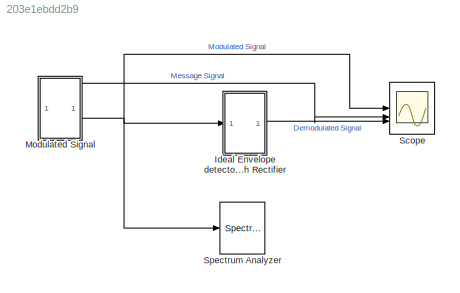
MODEL slx_203e1ebdd2b9
KIND model
CONFIG AbsTol = auto
CONFIG EnableMultiTasking = off
CONFIG FixedStep = auto
CONFIG MaxStep = auto
CONFIG MinStep = auto
CONFIG RelTol = 1e-3
CONFIG SampleTimeConstraint = Unconstrained
CONFIG SolverName = VariableStepAuto
CONFIG StartTime = 0.0
CONFIG StopTime = 0.02
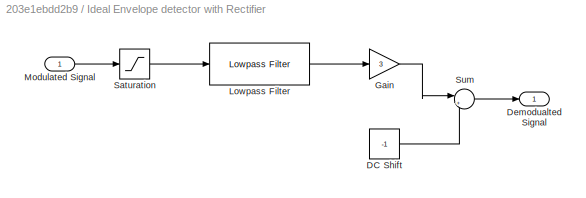
BLOCK [SubSystem] Ideal Envelope detector with Rectifier
BLOCK [Constant] Ideal Envelope detector with Rectifier/DC Shift
  Value = -1
BLOCK [Outport] Ideal Envelope detector with Rectifier/Demodualted Signal
BLOCK [Gain] Ideal Envelope detector with Rectifier/Gain
  Gain = 3
BLOCK [Reference] Ideal Envelope detector with Rectifier/Lowpass Filter  REF=dspfdesign/Lowpass Filter
  SourceBlock = dspfdesign/Lowpass Filter
  SourceType = dsp.simulink.LowpassFilter
BLOCK [Inport] Ideal Envelope detector with Rectifier/Modulated Signal
BLOCK [Saturate] Ideal Envelope detector with Rectifier/Saturation
  LowerLimit = 0
  UpperLimit = 2
BLOCK [Sum] Ideal Envelope detector with Rectifier/Sum
  Inputs = |++
  NameLocation = top
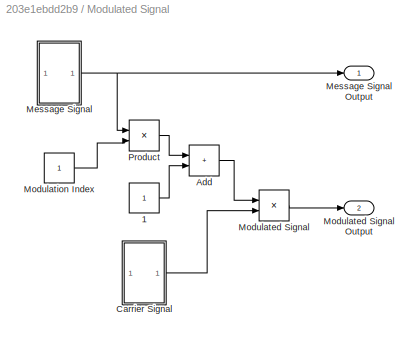
BLOCK [SubSystem] Modulated Signal
BLOCK [Outport] Modulated Signal/ Modulated Signal Output
  Port = 2
BLOCK [Constant] Modulated Signal/1
BLOCK [Sum] Modulated Signal/Add
  IconShape = rectangular
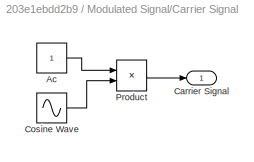
BLOCK [SubSystem] Modulated Signal/Carrier Signal
BLOCK [Constant] Modulated Signal/Carrier Signal/Ac
BLOCK [Outport] Modulated Signal/Carrier Signal/Carrier Signal
BLOCK [Sin] Modulated Signal/Carrier Signal/Cosine Wave
  Frequency = 125663.706137
  Phase = -pi/2
  SampleTime = 0.000002
BLOCK [Product] Modulated Signal/Carrier Signal/Product
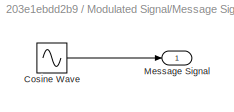
BLOCK [SubSystem] Modulated Signal/Message Signal
BLOCK [Outport] Modulated Signal/Message Signal Output
BLOCK [Sin] Modulated Signal/Message Signal/Cosine Wave
  Frequency = 12566.370614
  Phase = -pi/2
  SampleTime = 0.000002
BLOCK [Outport] Modulated Signal/Message Signal/Message Signal
BLOCK [Product] Modulated Signal/Modulated Signal
BLOCK [Constant] Modulated Signal/Modulation Index
BLOCK [Product] Modulated Signal/Product
BLOCK [Scope] Scope
  Floating = off
  NumInputPorts = 3
  ScopeSpecificationString = Simulink.scopes.TimeScopeBlockCfg('CurrentConfiguration', extmgr.ConfigurationSet(extmgr.Configuration('Core','General UI',true),extmgr.Configuration('Core','Source UI',true),extmgr.Configuration('Sources','WiredSimulink',true),extmgr.Configuration('Visuals','Time Domain',true,'SerializedDisplays',{struct('MinYLimReal','-3.00000','MaxYLimReal','3.00000','YLabelReal','','MinYLimMag','0.00000','MaxY...<+2120ch>
BLOCK [SpectrumAnalyzer] Spectrum Analyzer
  ScopeSpecificationString = spbscopes.SpectrumAnalyzerBlockCfg('CurrentConfiguration', extmgr.ConfigurationSet(extmgr.Configuration('Core','General UI',true),extmgr.Configuration('Core','Source UI',true),extmgr.Configuration('Sources','WiredSimulink',true),extmgr.Configuration('Visuals','Spectrum',true,'AxesProperties',struct('Color',{[0 0 0],[0 0 0]},'XColor',{[0.686274509803922 0.686274509803922 0.686274509803922],[0.68627...<+2855ch>
LINE Ideal Envelope detector with Rectifier/DC Shift:1 -> Ideal Envelope detector with Rectifier/Sum:2
LINE Ideal Envelope detector with Rectifier/Gain:1 -> Ideal Envelope detector with Rectifier/Sum:1
LINE Ideal Envelope detector with Rectifier/Lowpass Filter:1 -> Ideal Envelope detector with Rectifier/Gain:1
LINE Ideal Envelope detector with Rectifier/Modulated Signal:1 -> Ideal Envelope detector with Rectifier/Saturation:1
LINE Ideal Envelope detector with Rectifier/Saturation:1 -> Ideal Envelope detector with Rectifier/Lowpass Filter:1
LINE Ideal Envelope detector with Rectifier/Sum:1 -> Ideal Envelope detector with Rectifier/Demodualted Signal:1
LINE Ideal Envelope detector with Rectifier:1 -> Scope:3
LINE Modulated Signal/1:1 -> Modulated Signal/Add:2
LINE Modulated Signal/Add:1 -> Modulated Signal/Modulated Signal:1
LINE Modulated Signal/Carrier Signal/Ac:1 -> Modulated Signal/Carrier Signal/Product:1
LINE Modulated Signal/Carrier Signal/Cosine Wave:1 -> Modulated Signal/Carrier Signal/Product:2
LINE Modulated Signal/Carrier Signal/Product:1 -> Modulated Signal/Carrier Signal/Carrier Signal:1
LINE Modulated Signal/Carrier Signal:1 -> Modulated Signal/Modulated Signal:2
LINE Modulated Signal/Message Signal/Cosine Wave:1 -> Modulated Signal/Message Signal/Message Signal:1
NET Modulated Signal/Message Signal:1 -> Modulated Signal/Message Signal Output:1, Modulated Signal/Product:1
LINE Modulated Signal/Modulated Signal:1 -> Modulated Signal/ Modulated Signal Output:1
LINE Modulated Signal/Modulation Index:1 -> Modulated Signal/Product:2
LINE Modulated Signal/Product:1 -> Modulated Signal/Add:1
LINE Modulated Signal:1 -> Scope:2
NET Modulated Signal:2 -> Ideal Envelope detector with Rectifier:1, Scope:1, Spectrum Analyzer:1
note: NET lines group one-source signal fan-out (src -> all destinations, sorted); 1:1 wires keep LINE
